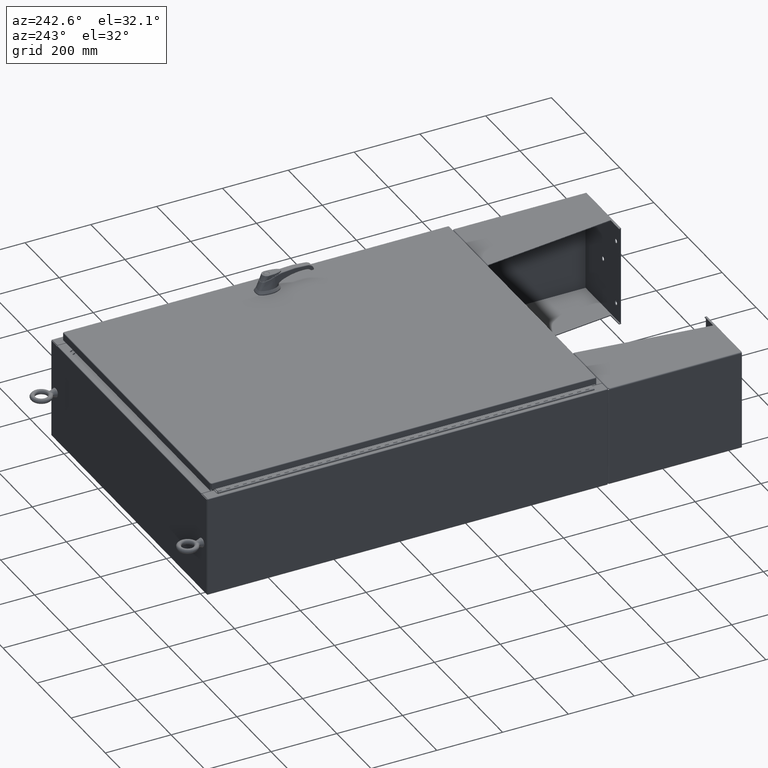
[diagram: clean part render]
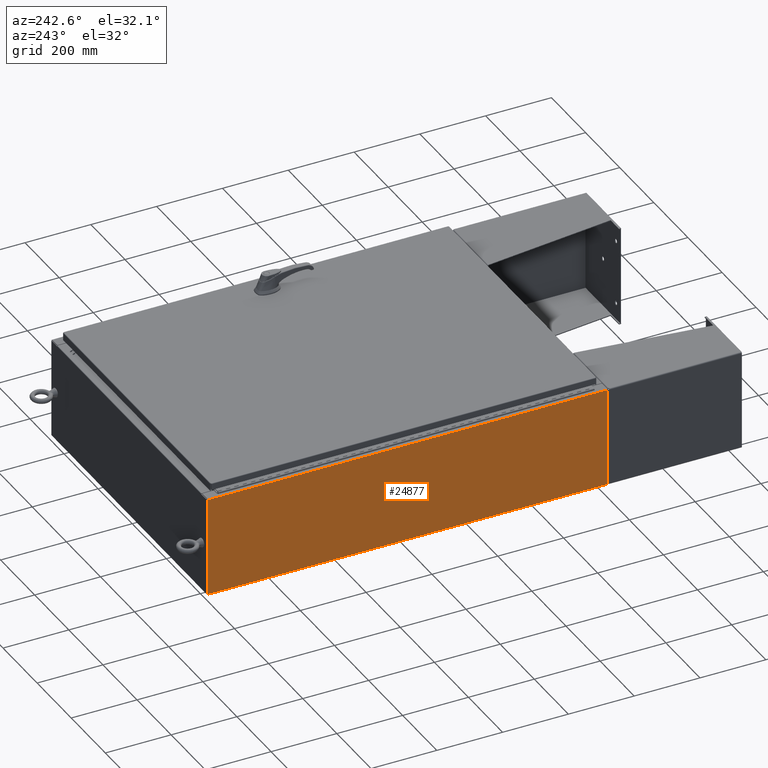
[diagram: same view with one face highlighted and labeled with its STEP entity id]
A machine part, auxiliary view. The second image highlights one B-rep face of the part: STEP entity #24877.
In plain terms, the highlighted planar face has unit normal (1, 0, 0).
Its self-contained STEP definition (entity closure, byte-faithful):
#2580 = LINE ( 'NONE', #25108, #108946 ) ;
#6005 = CARTESIAN_POINT ( 'NONE',  ( -18.00000000000004600, 23.92529999999998900, 11.83760000000000200 ) ) ;
#9147 = CARTESIAN_POINT ( 'NONE',  ( -18.00000000000004600, -23.92529999999998900, 11.83760000000000200 ) ) ;
#10255 = ORIENTED_EDGE ( 'NONE', *, *, #118761, .T. ) ;
#14596 = CARTESIAN_POINT ( 'NONE',  ( -18.00000000000000400, -23.92529999999998600, 0.01299999999999984700 ) ) ;
#16785 = VECTOR ( 'NONE', #62028, 39.37007874015748100 ) ;
#20489 = CARTESIAN_POINT ( 'NONE',  ( -18.00000000000000400, 23.92529999999998900, 0.01299999999999984700 ) ) ;
#23353 = ORIENTED_EDGE ( 'NONE', *, *, #112856, .T. ) ;
#24877 = ADVANCED_FACE ( 'NONE', ( #61701 ), #93846, .F. ) ;
#25108 = CARTESIAN_POINT ( 'NONE',  ( -18.00000000000000400, 23.92529999999998900, -6.293710784286998800E-014 ) ) ;
#30249 = CARTESIAN_POINT ( 'NONE',  ( -18.00000000000000400, 0.0000000000000000000, -6.293710784286998800E-014 ) ) ;
#31099 = VECTOR ( 'NONE', #54019, 39.37007874015748100 ) ;
#34409 = LINE ( 'NONE', #86098, #31099 ) ;
#36676 = CARTESIAN_POINT ( 'NONE',  ( -18.00000000000004600, -23.92529999999998600, 11.83760000000000200 ) ) ;
#40896 = DIRECTION ( 'NONE',  ( 3.482016343714355100E-015, 0.0000000000000000000, -1.000000000000000000 ) ) ;
#48492 = ORIENTED_EDGE ( 'NONE', *, *, #136495, .F. ) ;
#54019 = DIRECTION ( 'NONE',  ( -0.0000000000000000000, 1.000000000000000000, -0.0000000000000000000 ) ) ;
#55903 = VERTEX_POINT ( 'NONE', #20489 ) ;
#56139 = DIRECTION ( 'NONE',  ( 3.482016343714355500E-015, 0.0000000000000000000, -1.000000000000000000 ) ) ;
#61701 = FACE_OUTER_BOUND ( 'NONE', #109308, .T. ) ;
#62028 = DIRECTION ( 'NONE',  ( 0.0000000000000000000, 1.000000000000000000, 0.0000000000000000000 ) ) ;
#62440 = AXIS2_PLACEMENT_3D ( 'NONE', #30249, #104508, #40896 ) ;
#65534 = LINE ( 'NONE', #102670, #87163 ) ;
#77196 = VERTEX_POINT ( 'NONE', #36676 ) ;
#81300 = DIRECTION ( 'NONE',  ( -3.482016343714355500E-015, 0.0000000000000000000, 1.000000000000000000 ) ) ;
#84998 = EDGE_CURVE ( 'NONE', #115852, #77196, #65534, .T. ) ;
#86098 = CARTESIAN_POINT ( 'NONE',  ( -18.00000000000000400, 23.92529999999998900, 0.01299999999999984700 ) ) ;
#87163 = VECTOR ( 'NONE', #81300, 39.37007874015748100 ) ;
#93846 = PLANE ( 'NONE',  #62440 ) ;
#102670 = CARTESIAN_POINT ( 'NONE',  ( -18.00000000000000400, -23.92529999999999600, -6.293710784286998800E-014 ) ) ;
#104508 = DIRECTION ( 'NONE',  ( 1.000000000000000000, 0.0000000000000000000, 3.482016343714355100E-015 ) ) ;
#108946 = VECTOR ( 'NONE', #56139, 39.37007874015748100 ) ;
#109308 = EDGE_LOOP ( 'NONE', ( #10255, #23353, #48492, #131479 ) ) ;
#112856 = EDGE_CURVE ( 'NONE', #116200, #55903, #2580, .T. ) ;
#115852 = VERTEX_POINT ( 'NONE', #14596 ) ;
#116200 = VERTEX_POINT ( 'NONE', #6005 ) ;
#118761 = EDGE_CURVE ( 'NONE', #77196, #116200, #126459, .T. ) ;
#126459 = LINE ( 'NONE', #9147, #16785 ) ;
#131479 = ORIENTED_EDGE ( 'NONE', *, *, #84998, .T. ) ;
#136495 = EDGE_CURVE ( 'NONE', #115852, #55903, #34409, .T. ) ;